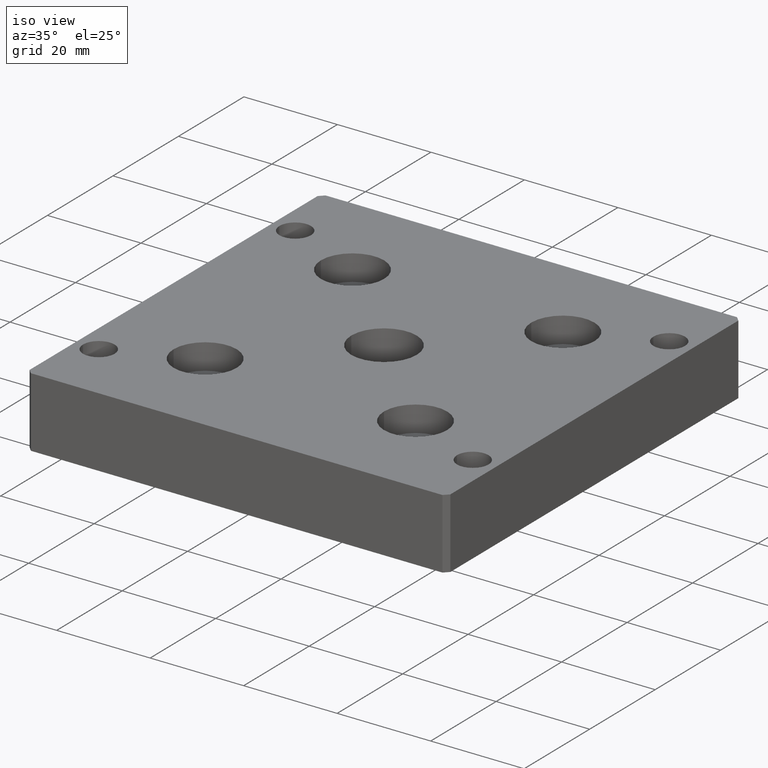
[diagram: clean part render]
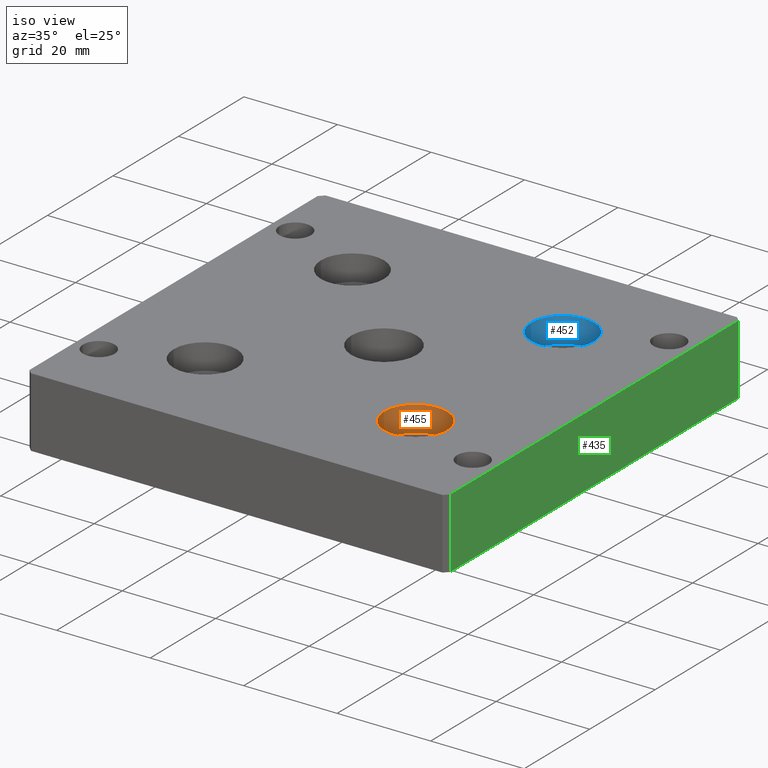
[diagram: same view with three faces highlighted in distinct colors, each labeled with its STEP entity id]
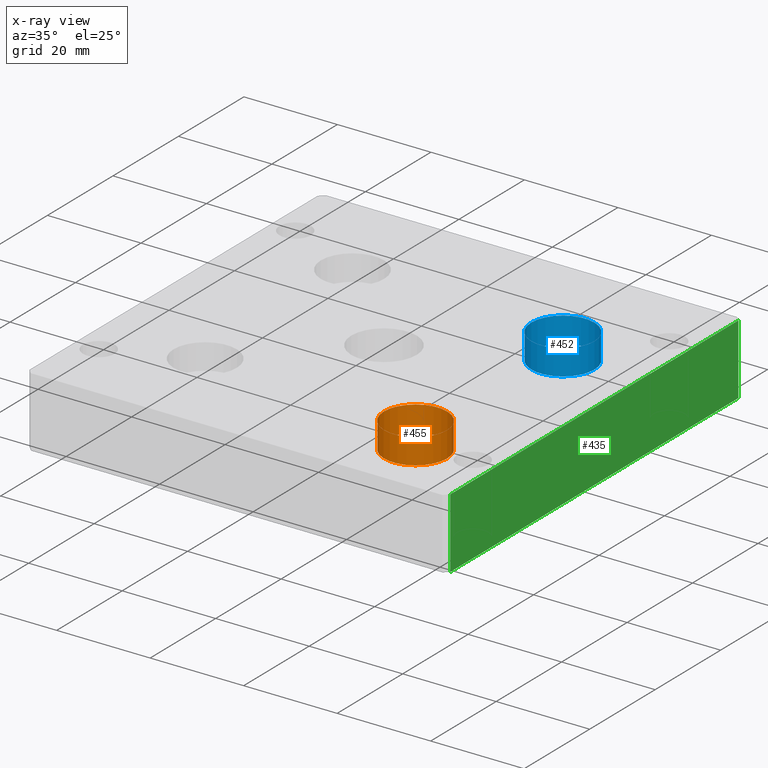
[diagram: x-ray of the same camera — body ghosted, the three highlighted faces saturated]
A machine part, iso view with three faces highlighted in distinct colors.
The next image is the same camera in x-ray (body ghosted, the three faces saturated) — at least one of them is partly hidden behind the body in this view.
Their STEP definitions:

[orange] entity #455 — the highlighted cylindrical surface (bore or boss wall) has radius 6.75 mm, axis along (0, 0, 1).
#25=CYLINDRICAL_SURFACE('',#508,6.75);
#59=FACE_BOUND('',#171,.T.);
#70=CIRCLE('',#477,6.75);
#86=CIRCLE('',#507,6.75);
#112=FACE_OUTER_BOUND('',#170,.T.);
#170=EDGE_LOOP('',(#410));
#171=EDGE_LOOP('',(#411));
#249=VERTEX_POINT('',#710);
#265=VERTEX_POINT('',#756);
#299=EDGE_CURVE('',#249,#249,#70,.T.);
#315=EDGE_CURVE('',#265,#265,#86,.T.);
#410=ORIENTED_EDGE('',*,*,#299,.T.);
#411=ORIENTED_EDGE('',*,*,#315,.F.);
#455=ADVANCED_FACE('',(#112,#59),#25,.F.);
#477=AXIS2_PLACEMENT_3D('',#711,#572,#573);
#507=AXIS2_PLACEMENT_3D('',#757,#632,#633);
#508=AXIS2_PLACEMENT_3D('',#758,#634,#635);
#572=DIRECTION('center_axis',(0.,0.,1.));
#573=DIRECTION('ref_axis',(1.,0.,0.));
#632=DIRECTION('center_axis',(0.,0.,1.));
#633=DIRECTION('ref_axis',(1.,0.,0.));
#634=DIRECTION('center_axis',(0.,0.,1.));
#635=DIRECTION('ref_axis',(1.,0.,0.));
#710=CARTESIAN_POINT('',(15.74999999991,-22.49999999991,0.));
#711=CARTESIAN_POINT('Origin',(22.49999999991,-22.49999999991,0.));
#756=CARTESIAN_POINT('',(15.74999999991,-22.49999999991,-5.5));
#757=CARTESIAN_POINT('Origin',(22.49999999991,-22.49999999991,-5.5));
#758=CARTESIAN_POINT('Origin',(22.49999999991,-22.49999999991,-5.5));

[blue] entity #452 — the highlighted cylindrical surface (bore or boss wall) has radius 6.75 mm, axis along (0, 0, 1).
#23=CYLINDRICAL_SURFACE('',#503,6.75);
#56=FACE_BOUND('',#165,.T.);
#69=CIRCLE('',#476,6.75);
#84=CIRCLE('',#502,6.75);
#109=FACE_OUTER_BOUND('',#164,.T.);
#164=EDGE_LOOP('',(#404));
#165=EDGE_LOOP('',(#405));
#248=VERTEX_POINT('',#708);
#263=VERTEX_POINT('',#749);
#298=EDGE_CURVE('',#248,#248,#69,.T.);
#313=EDGE_CURVE('',#263,#263,#84,.T.);
#404=ORIENTED_EDGE('',*,*,#298,.T.);
#405=ORIENTED_EDGE('',*,*,#313,.F.);
#452=ADVANCED_FACE('',(#109,#56),#23,.F.);
#476=AXIS2_PLACEMENT_3D('',#709,#570,#571);
#502=AXIS2_PLACEMENT_3D('',#750,#622,#623);
#503=AXIS2_PLACEMENT_3D('',#751,#624,#625);
#570=DIRECTION('center_axis',(0.,0.,1.));
#571=DIRECTION('ref_axis',(1.,0.,0.));
#622=DIRECTION('center_axis',(0.,0.,1.));
#623=DIRECTION('ref_axis',(1.,0.,0.));
#624=DIRECTION('center_axis',(0.,0.,1.));
#625=DIRECTION('ref_axis',(1.,0.,0.));
#708=CARTESIAN_POINT('',(15.74999999991,22.49999999991,0.));
#709=CARTESIAN_POINT('Origin',(22.49999999991,22.49999999991,0.));
#749=CARTESIAN_POINT('',(15.74999999991,22.49999999991,-5.5));
#750=CARTESIAN_POINT('Origin',(22.49999999991,22.49999999991,-5.5));
#751=CARTESIAN_POINT('Origin',(22.49999999991,22.49999999991,-5.5));

[green] entity #435 — the highlighted planar face has unit normal (-1, 0, 0).
#92=FACE_OUTER_BOUND('',#119,.T.);
#119=EDGE_LOOP('',(#330,#331,#332,#333));
#186=LINE('',#666,#210);
#188=LINE('',#670,#212);
#189=LINE('',#672,#213);
#190=LINE('',#673,#214);
#210=VECTOR('',#530,15.);
#212=VECTOR('',#534,87.999999999648);
#213=VECTOR('',#535,15.);
#214=VECTOR('',#536,87.999999999648);
#232=VERTEX_POINT('',#663);
#233=VERTEX_POINT('',#665);
#234=VERTEX_POINT('',#669);
#235=VERTEX_POINT('',#671);
#276=EDGE_CURVE('',#233,#232,#186,.T.);
#278=EDGE_CURVE('',#232,#234,#188,.T.);
#279=EDGE_CURVE('',#235,#234,#189,.T.);
#280=EDGE_CURVE('',#233,#235,#190,.T.);
#330=ORIENTED_EDGE('',*,*,#276,.T.);
#331=ORIENTED_EDGE('',*,*,#278,.T.);
#332=ORIENTED_EDGE('',*,*,#279,.F.);
#333=ORIENTED_EDGE('',*,*,#280,.F.);
#421=PLANE('',#464);
#435=ADVANCED_FACE('',(#92),#421,.F.);
#464=AXIS2_PLACEMENT_3D('',#668,#532,#533);
#530=DIRECTION('',(0.,0.,-1.));
#532=DIRECTION('center_axis',(-1.,0.,0.));
#533=DIRECTION('ref_axis',(0.,0.,1.));
#534=DIRECTION('',(0.,1.,0.));
#535=DIRECTION('',(0.,0.,-1.));
#536=DIRECTION('',(0.,1.,0.));
#663=CARTESIAN_POINT('',(44.9999999998199,-43.999999999824,-15.));
#665=CARTESIAN_POINT('',(44.9999999998199,-43.999999999824,0.));
#666=CARTESIAN_POINT('',(44.9999999998199,-43.999999999824,0.));
#668=CARTESIAN_POINT('Origin',(44.9999999998199,-43.999999999824,0.));
#669=CARTESIAN_POINT('',(44.9999999998199,43.999999999824,-15.));
#670=CARTESIAN_POINT('',(44.9999999998199,-43.999999999824,-15.));
#671=CARTESIAN_POINT('',(44.9999999998199,43.999999999824,0.));
#672=CARTESIAN_POINT('',(44.9999999998199,43.999999999824,0.));
#673=CARTESIAN_POINT('',(44.9999999998199,-43.999999999824,0.));